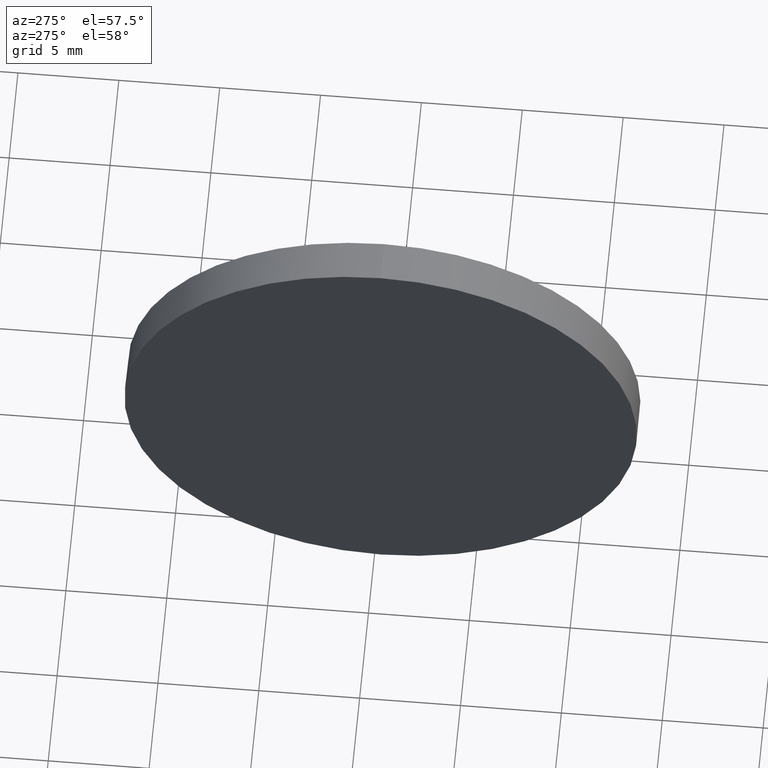
[diagram: clean part render]
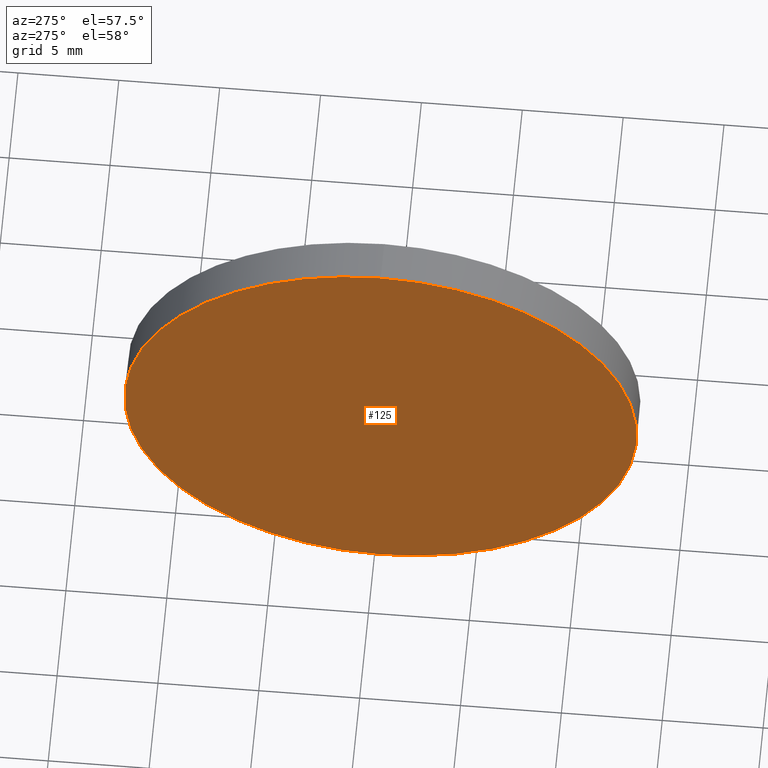
[diagram: same view with one face highlighted and labeled with its STEP entity id]
A machine part, auxiliary view. The second image highlights one B-rep face of the part: STEP entity #125.
In plain terms, the highlighted planar face has unit normal (1, 0, 0).
Its self-contained STEP definition (entity closure, byte-faithful):
#11 = EDGE_LOOP ( 'NONE', ( #162, #81 ) ) ;
#22 = DIRECTION ( 'NONE',  ( 0.0000000000000000000, 0.0000000000000000000, 1.000000000000000000 ) ) ;
#25 = DIRECTION ( 'NONE',  ( 1.000000000000000000, 0.0000000000000000000, 0.0000000000000000000 ) ) ;
#32 = AXIS2_PLACEMENT_3D ( 'NONE', #140, #111, #22 ) ;
#35 = DIRECTION ( 'NONE',  ( -1.000000000000000000, -0.0000000000000000000, -0.0000000000000000000 ) ) ;
#58 = FACE_OUTER_BOUND ( 'NONE', #11, .T. ) ;
#60 = AXIS2_PLACEMENT_3D ( 'NONE', #114, #25, #145 ) ;
#81 = ORIENTED_EDGE ( 'NONE', *, *, #87, .T. ) ;
#87 = EDGE_CURVE ( 'NONE', #116, #182, #170, .T. ) ;
#88 = CARTESIAN_POINT ( 'NONE',  ( 498.1234374568193700, 104.6700815255059400, 12.70000000000000300 ) ) ;
#90 = EDGE_CURVE ( 'NONE', #182, #116, #129, .T. ) ;
#111 = DIRECTION ( 'NONE',  ( -1.000000000000000000, -0.0000000000000000000, -0.0000000000000000000 ) ) ;
#114 = CARTESIAN_POINT ( 'NONE',  ( 498.1234374568193700, 104.6700815255059400, 0.0000000000000000000 ) ) ;
#115 = PLANE ( 'NONE',  #60 ) ;
#116 = VERTEX_POINT ( 'NONE', #164 ) ;
#125 = ADVANCED_FACE ( 'NONE', ( #58 ), #115, .F. ) ;
#129 = CIRCLE ( 'NONE', #32, 12.70000000000000300 ) ;
#140 = CARTESIAN_POINT ( 'NONE',  ( 498.1234374568193700, 104.6700815255059400, 0.0000000000000000000 ) ) ;
#145 = DIRECTION ( 'NONE',  ( 0.0000000000000000000, 0.0000000000000000000, -1.000000000000000000 ) ) ;
#153 = DIRECTION ( 'NONE',  ( 0.0000000000000000000, 0.0000000000000000000, 1.000000000000000000 ) ) ;
#162 = ORIENTED_EDGE ( 'NONE', *, *, #90, .T. ) ;
#164 = CARTESIAN_POINT ( 'NONE',  ( 498.1234374568193700, 104.6700815255059400, -12.70000000000000300 ) ) ;
#166 = AXIS2_PLACEMENT_3D ( 'NONE', #175, #35, #153 ) ;
#170 = CIRCLE ( 'NONE', #166, 12.70000000000000300 ) ;
#175 = CARTESIAN_POINT ( 'NONE',  ( 498.1234374568193700, 104.6700815255059400, 0.0000000000000000000 ) ) ;
#182 = VERTEX_POINT ( 'NONE', #88 ) ;